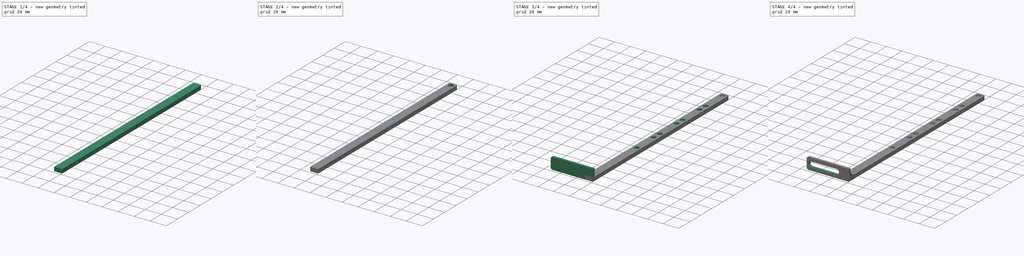
[diagram: build sequence overview — one tinted view per stage of 4, left to right]
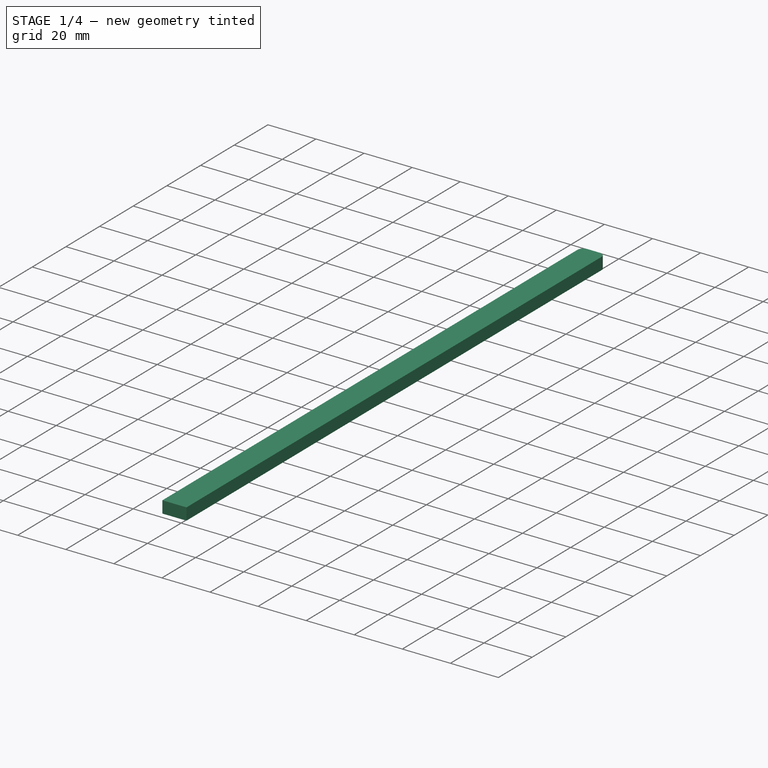
[diagram: stage 1 of 4 — iso view after this stage's code; geometry added in this stage tinted green]
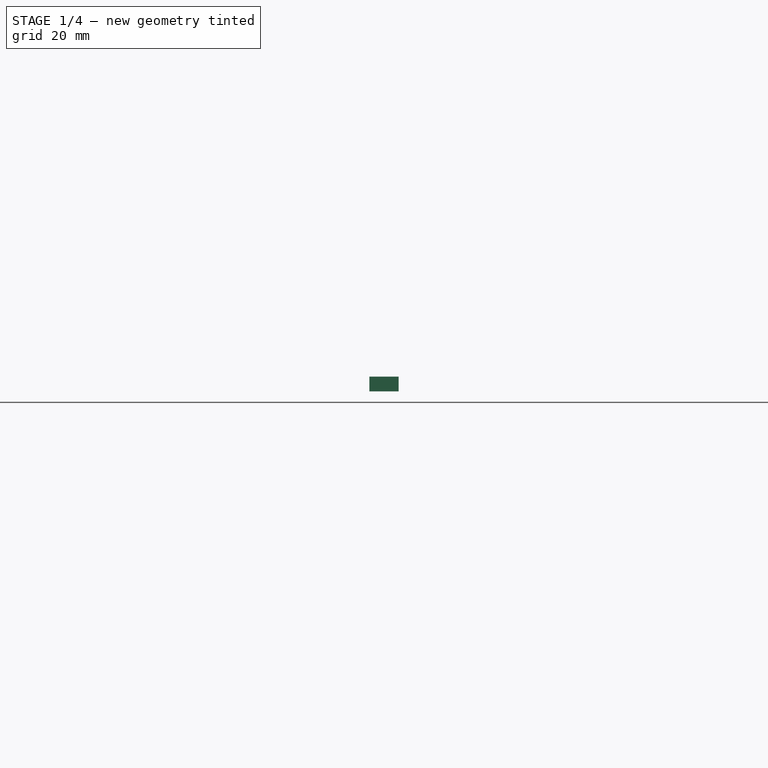
[diagram: stage 1 of 4 — front view after this stage's code; geometry added in this stage tinted green]
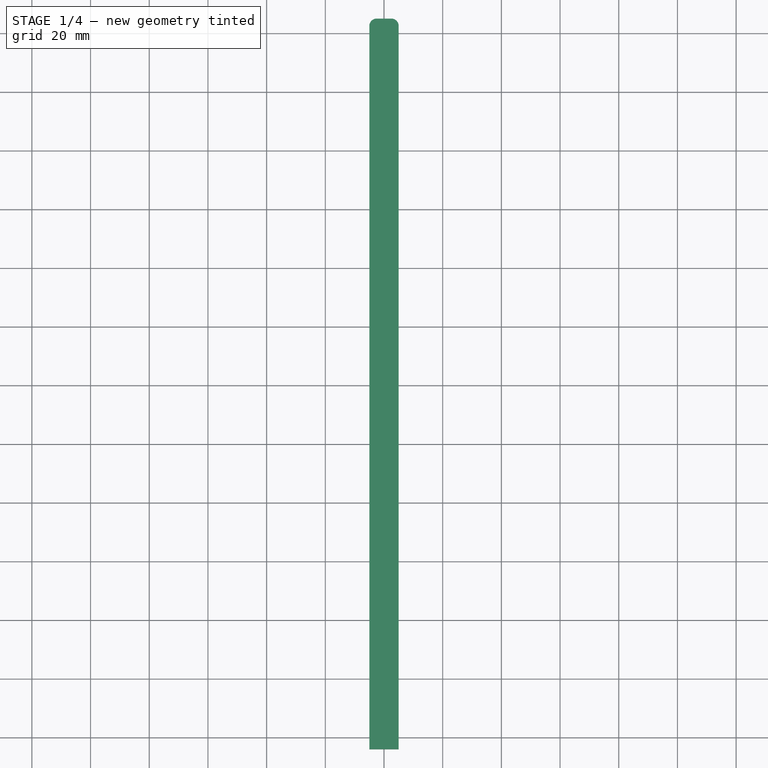
[diagram: stage 1 of 4 — top view after this stage's code; geometry added in this stage tinted green]
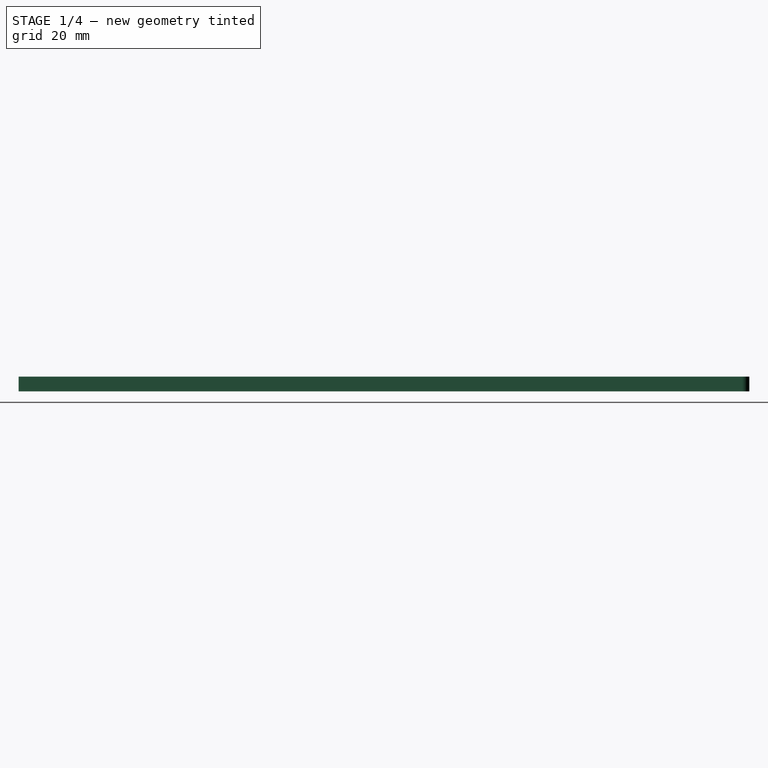
[diagram: stage 1 of 4 — right view after this stage's code; geometry added in this stage tinted green]
FCSTD DOCUMENT  (FreeCAD 0.19R)
Label: Rack
License: All rights reserved
LicenseURL: http://en.wikipedia.org/wiki/All_rights_reserved
objects: Sketcher::SketchObject×6, PartDesign::Pad×3, PartDesign::Mirrored×2, PartDesign::Pocket×2, PartDesign::LinearPattern×2, PartDesign::Hole×1, PartDesign::MultiTransform×1, PartDesign::Body×1
note: 24 computed .brp shape members not serialized (recipe doc carries the construction recipe); baked Part::Feature solids carry a one-line shape summary decoded from their .brp

FEATURE [Sketcher::SketchObject] Sketch  label="rod_sketch"
  FullyConstrained = true
  MapMode = 5
  Support = -> [XY_Plane]
  sketch-geometry (6):
    g0: LineSegment StartX=0 StartY=5 StartZ=0 EndX=-2.5 EndY=5 EndZ=0
    g1: LineSegment StartX=-5 StartY=2.5 StartZ=0 EndX=-5 EndY=-244 EndZ=0
    g2: LineSegment StartX=-5 StartY=-244 StartZ=0 EndX=0 EndY=-244 EndZ=0
    g3: LineSegment StartX=0 StartY=-244 StartZ=0 EndX=0 EndY=5 EndZ=0
    g4: ArcOfCircle CenterX=-2.5 CenterY=2.5 CenterZ=0 NormalX=0 NormalY=0 NormalZ=1 AngleXU=0 Radius=2.5 StartAngle=1.5708 EndAngle=3.14159
    g5: GeomPoint X=-5 Y=5 Z=0
  constraints (16):
    c: Coincident(g1,g2)
    c: Coincident(g2,g3)
    c: Coincident(g3,g0)
    c: Horizontal(g0)
    c: Horizontal(g2)
    c: Vertical(g1)
    c: Vertical(g3)
    c: PointOnObject(g0,g-2)
    c: DistanceX(g5,g0) = 5
    c: Distance(g0,g-1) = 5
    c: DistanceY(g3,g3) = 249
    c: PointOnObject(g5,g0)
    c: PointOnObject(g5,g1)
    c: Tangent(g0,g4) = -1.5708
    c: Tangent(g1,g4) = -1.5708
    c: Radius(g4) = 2.5
FEATURE [PartDesign::Pad] Pad  label="rod"
  Direction = (1,1,1)
  Length = 5
  Length2 = 100
  Profile = -> Sketch
  Type = 0
FEATURE [PartDesign::Mirrored] Mirrored  label="rod_mirror"
  BaseFeature = -> Pad
  MirrorPlane = -> Sketch [V_Axis]
  Originals = -> [Pad]
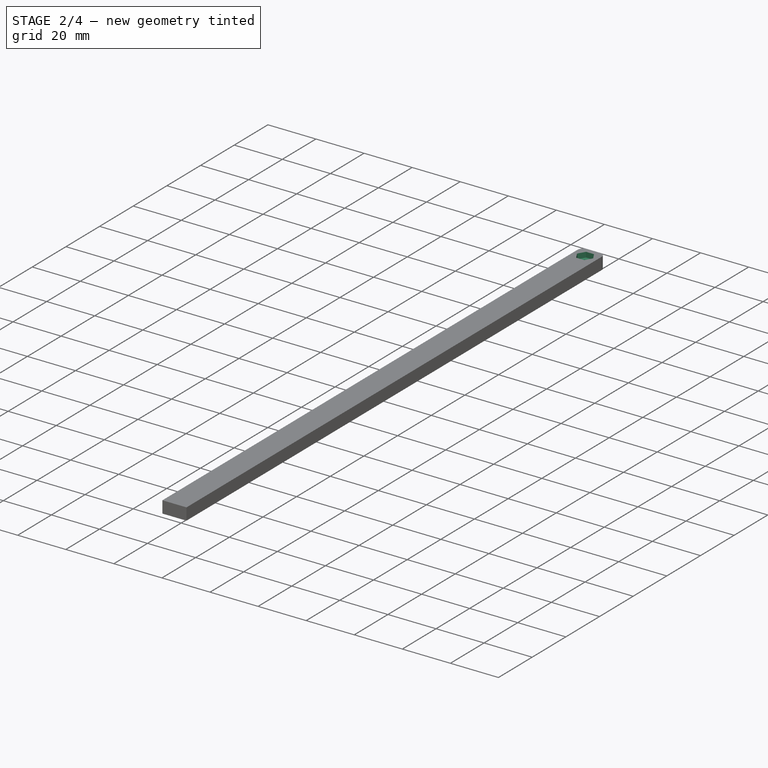
[diagram: stage 2 of 4 — iso view after this stage's code; geometry added in this stage tinted green]
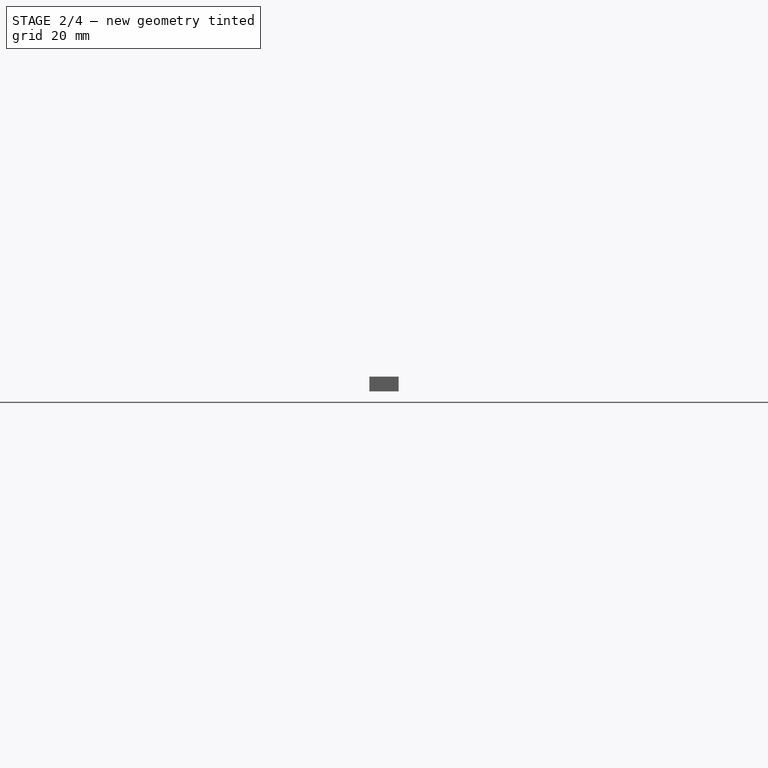
[diagram: stage 2 of 4 — front view after this stage's code; geometry added in this stage tinted green]
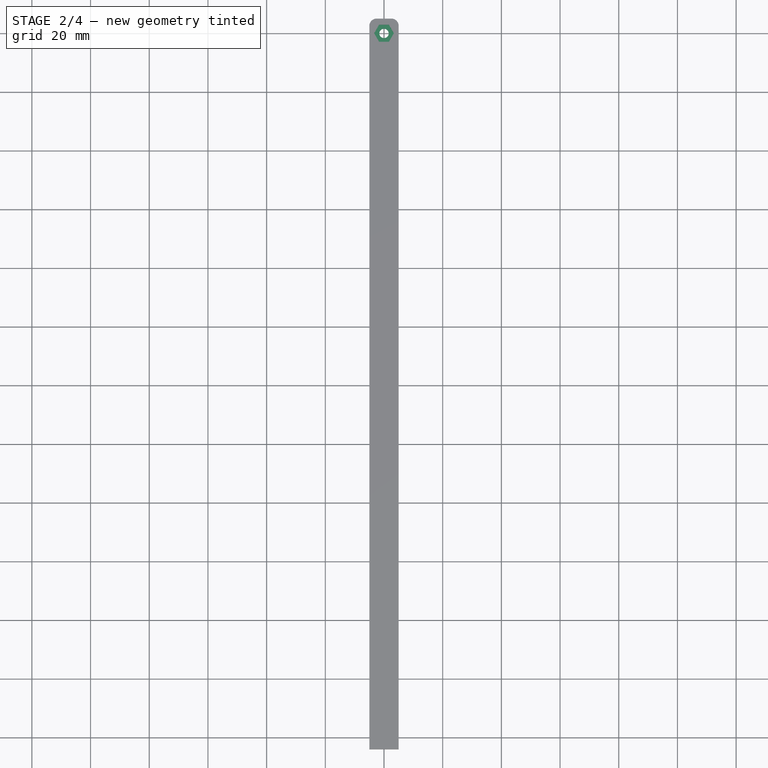
[diagram: stage 2 of 4 — top view after this stage's code; geometry added in this stage tinted green]
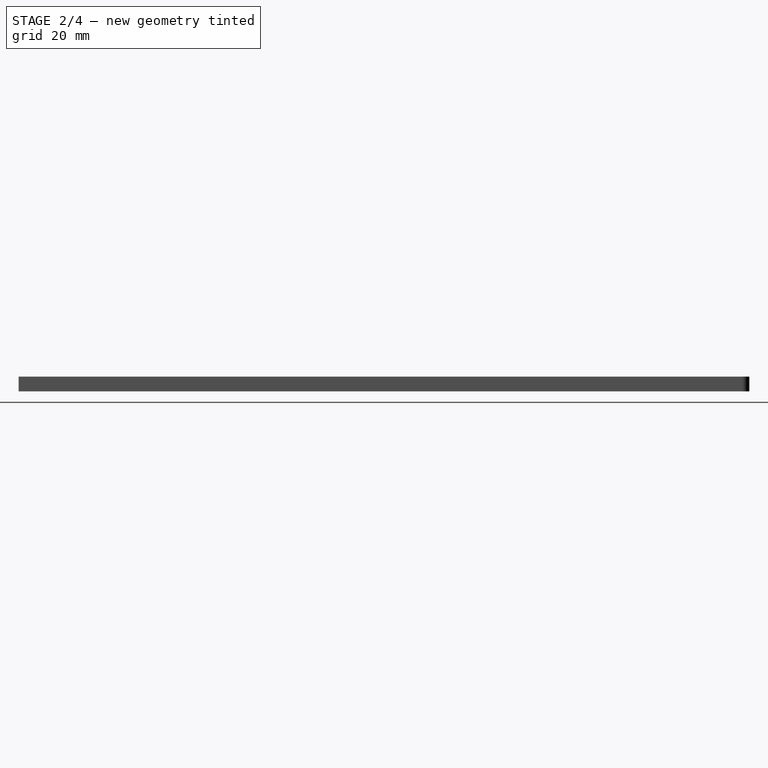
[diagram: stage 2 of 4 — right view after this stage's code; geometry added in this stage tinted green]
FEATURE [Sketcher::SketchObject] Sketch001  label="M3_hex_sketch"
  FullyConstrained = true
  MapMode = 5
  Placement = pos=(0,0,5) rot=(0,0,1;0rad)
  Support = -> [Mirrored]
  sketch-geometry (7):
    g0: LineSegment StartX=3.34863 StartY=0 StartZ=0 EndX=1.67432 EndY=2.9 EndZ=0
    g1: LineSegment StartX=1.67432 StartY=2.9 StartZ=0 EndX=-1.67432 EndY=2.9 EndZ=0
    g2: LineSegment StartX=-1.67432 StartY=2.9 StartZ=0 EndX=-3.34863 EndY=0 EndZ=0
    g3: LineSegment StartX=-3.34863 StartY=0 StartZ=0 EndX=-1.67432 EndY=-2.9 EndZ=0
    g4: LineSegment StartX=-1.67432 StartY=-2.9 StartZ=0 EndX=1.67432 EndY=-2.9 EndZ=0
    g5: LineSegment StartX=1.67432 StartY=-2.9 StartZ=0 EndX=3.34863 EndY=0 EndZ=0
    g6: Circle CenterX=0 CenterY=0 CenterZ=0 NormalX=0 NormalY=0 NormalZ=1 AngleXU=0 Radius=3.34863
  constraints (16):
    c: Coincident(g0,g1)
    c: Coincident(g1,g2)
    c: Coincident(g2,g3)
    c: Coincident(g3,g4)
    c: Coincident(g4,g5)
    c: Coincident(g5,g0)
    c: Equal(g0, g1-g5) x5
    c: PointOnObject(g0,g6)
    c: PointOnObject(g1,g6)
    c: PointOnObject(g2,g6)
    c: PointOnObject(g3,g6)
    c: PointOnObject(g4,g6)
    c: PointOnObject(g5,g6)
    c: Coincident(g6,g-1)
    c: PointOnObject(g5,g-1)
    c: DistanceY(g3,g1) = 5.8
FEATURE [PartDesign::Pocket] Pocket  label="M3_hex"
  BaseFeature = -> Mirrored
  Length = 2.15
  Length2 = 100
  Profile = -> Sketch001
  Type = 0
FEATURE [Sketcher::SketchObject] Sketch002  label="M3_hole_sektch"
  FullyConstrained = true
  MapMode = 5
  Placement = pos=(0,0,2.85) rot=(0,0,1;0rad)
  Support = -> [Pocket]
  sketch-geometry (1):
    g0: Circle CenterX=0 CenterY=0 CenterZ=0 NormalX=0 NormalY=0 NormalZ=1 AngleXU=0 Radius=1
  constraints (2):
    c: Coincident(g0,g-1)
    c: Radius(g0) = 1
FEATURE [PartDesign::Hole] Hole  label="M3_hole"
  BaseFeature = -> Pocket
  Depth = 25
  DepthType = 1
  Diameter = 3.2
  DrillForDepth = false
  DrillPoint = 1
  DrillPointAngle = 118
  HoleCutCountersinkAngle = 90
  HoleCutCustomValues = false
  HoleCutDepth = 0
  HoleCutDiameter = 6.1
  HoleCutType = 0
  ModelActualThread = false
  Profile = -> Sketch002
  Tapered = false
  TaperedAngle = 90
  ThreadAngle = 0
  ThreadClass = 0
  ThreadCutOffInner = 0
  ThreadCutOffOuter = 0
  ThreadDirection = 0
  ThreadFit = 1
  ThreadPitch = 0
  ThreadSize = 9
  ThreadType = 1
  Threaded = false
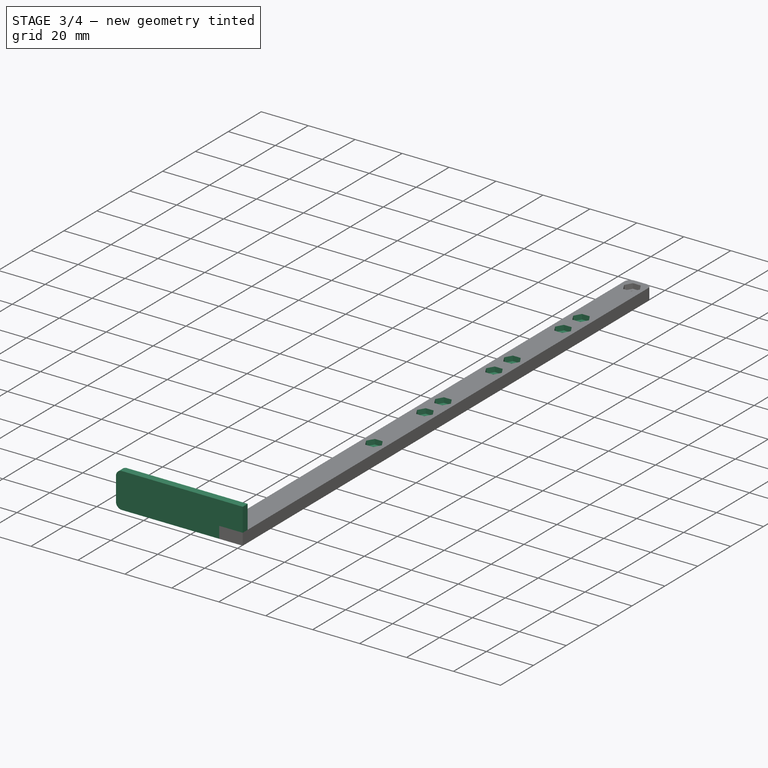
[diagram: stage 3 of 4 — iso view after this stage's code; geometry added in this stage tinted green]
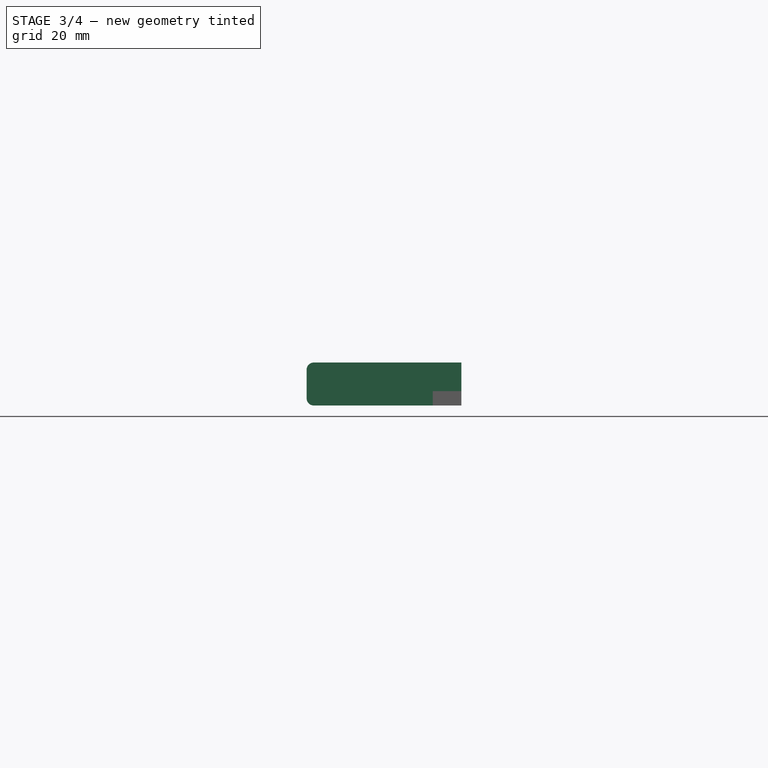
[diagram: stage 3 of 4 — front view after this stage's code; geometry added in this stage tinted green]
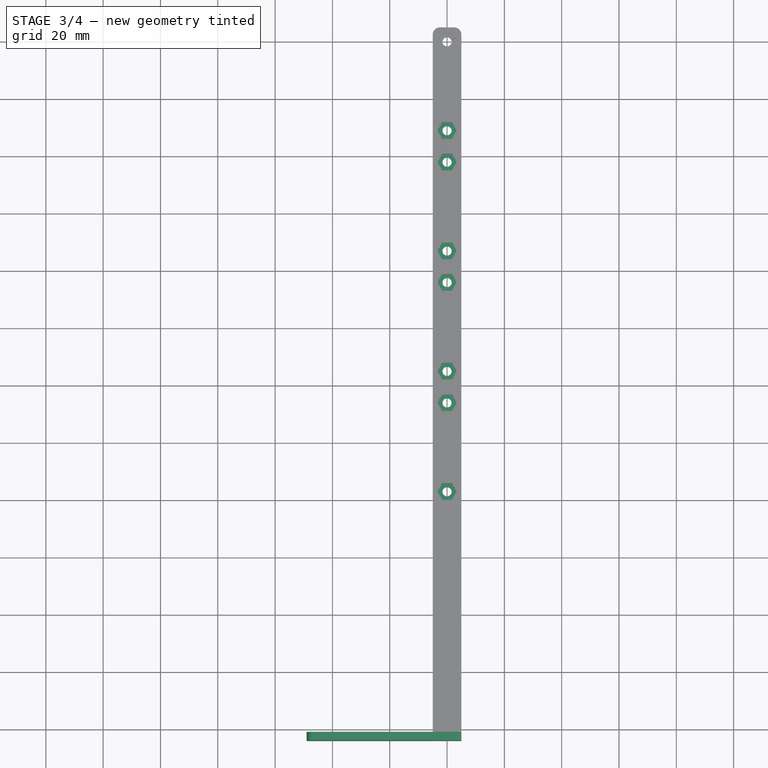
[diagram: stage 3 of 4 — top view after this stage's code; geometry added in this stage tinted green]
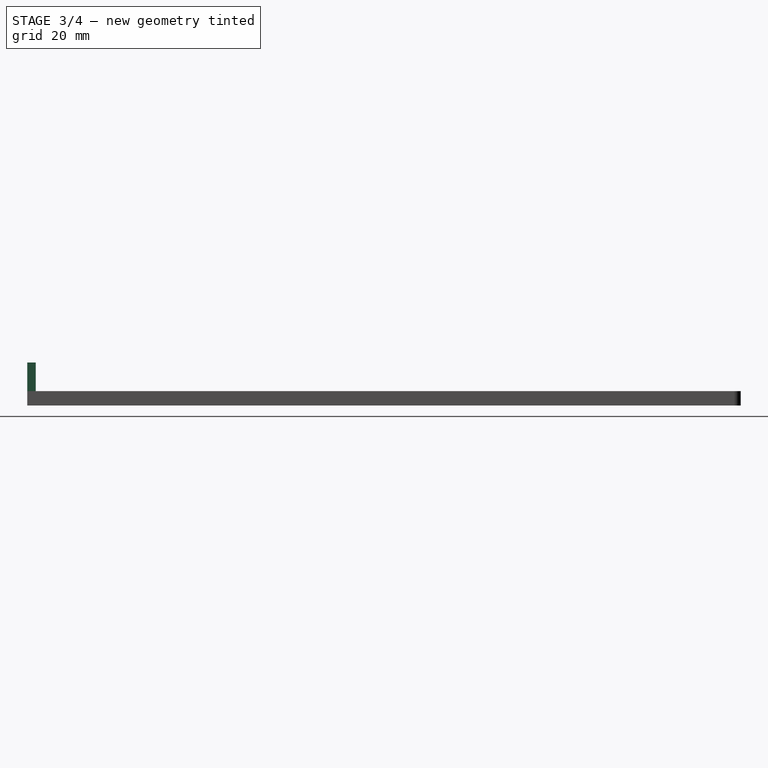
[diagram: stage 3 of 4 — right view after this stage's code; geometry added in this stage tinted green]
FEATURE [PartDesign::LinearPattern] LinearPattern
  Direction = -> Sketch001 [V_Axis]
  Length = 31
  Occurrences = 2
  Reversed = true
FEATURE [PartDesign::LinearPattern] LinearPattern001
  Direction = -> Sketch001 [V_Axis]
  Length = 126
  Occurrences = 4
  Reversed = true
FEATURE [PartDesign::MultiTransform] MultiTransform  label="M3_sys_array"
  BaseFeature = -> Hole
  Originals = -> [Pocket,Hole]
  Transformations = -> [LinearPattern,LinearPattern001]
FEATURE [Sketcher::SketchObject] Sketch004  label="side_base_half_sketch"
  ExternalGeometry = -> [MultiTransform]
  FullyConstrained = true
  MapMode = 5
  Placement = pos=(0,-244,0) rot=(1,0,0;1.5708rad)
  Support = -> [MultiTransform]
  sketch-geometry (6):
    g0: LineSegment StartX=5 StartY=0 StartZ=0 EndX=-46.5 EndY=0 EndZ=0
    g1: LineSegment StartX=-49 StartY=2.5 StartZ=0 EndX=-49 EndY=7.5 EndZ=0
    g2: LineSegment StartX=-49 StartY=7.5 StartZ=0 EndX=5 EndY=7.5 EndZ=0
    g3: LineSegment StartX=5 StartY=7.5 StartZ=0 EndX=5 EndY=0 EndZ=0
    g4: ArcOfCircle CenterX=-46.5 CenterY=2.5 CenterZ=0 NormalX=0 NormalY=0 NormalZ=1 AngleXU=0 Radius=2.5 StartAngle=3.14159 EndAngle=4.71239
    g5: GeomPoint X=-49 Y=0 Z=0
  constraints (15):
    c: Coincident(g1,g2)
    c: Coincident(g2,g3)
    c: Coincident(g3,g0)
    c: Horizontal(g0)
    c: Horizontal(g2)
    c: Vertical(g1)
    c: Vertical(g3)
    c: Coincident(g0,g-3)
    c: DistanceY(g3,g3) = 7.5
    c: DistanceX(g2,g2) = 54
    c: PointOnObject(g5,g1)
    c: PointOnObject(g5,g0)
    c: Tangent(g1,g4) = 1.5708
    c: Tangent(g0,g4) = 1.5708
    c: Radius(g4) = 2.5
FEATURE [PartDesign::Pad] Pad001  label="side_base_half"
  BaseFeature = -> MultiTransform
  Direction = (1,1,1)
  Length = 3
  Length2 = 100
  Profile = -> Sketch004
  Reversed = true
  Type = 0
FEATURE [PartDesign::Mirrored] Mirrored001  label="side_base"
  BaseFeature = -> Pad001
  MirrorPlane = -> Pad001 [Face82]
  Originals = -> [Pad001]
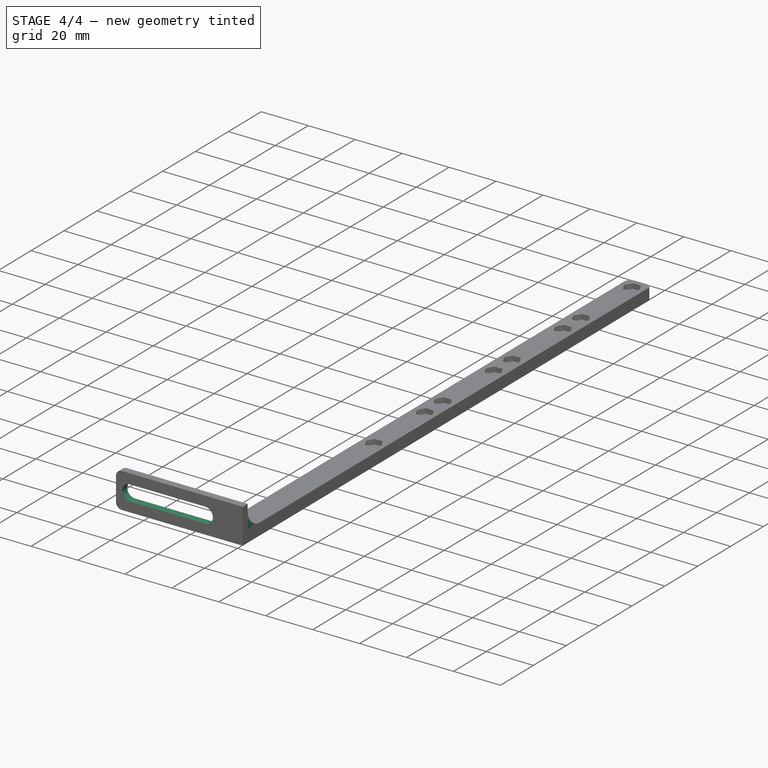
[diagram: stage 4 of 4 — iso view after this stage's code; geometry added in this stage tinted green]
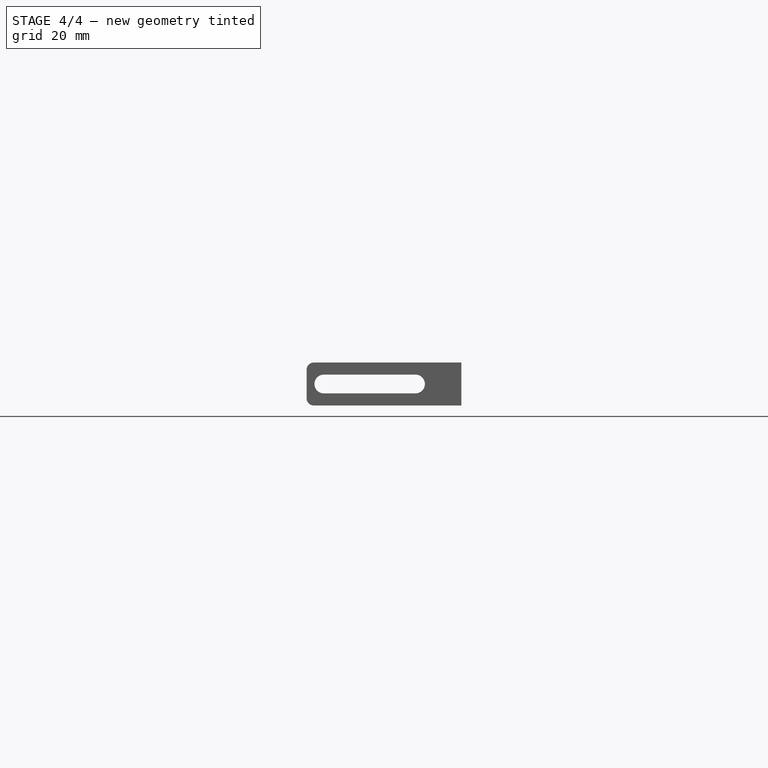
[diagram: stage 4 of 4 — front view after this stage's code; geometry added in this stage tinted green]
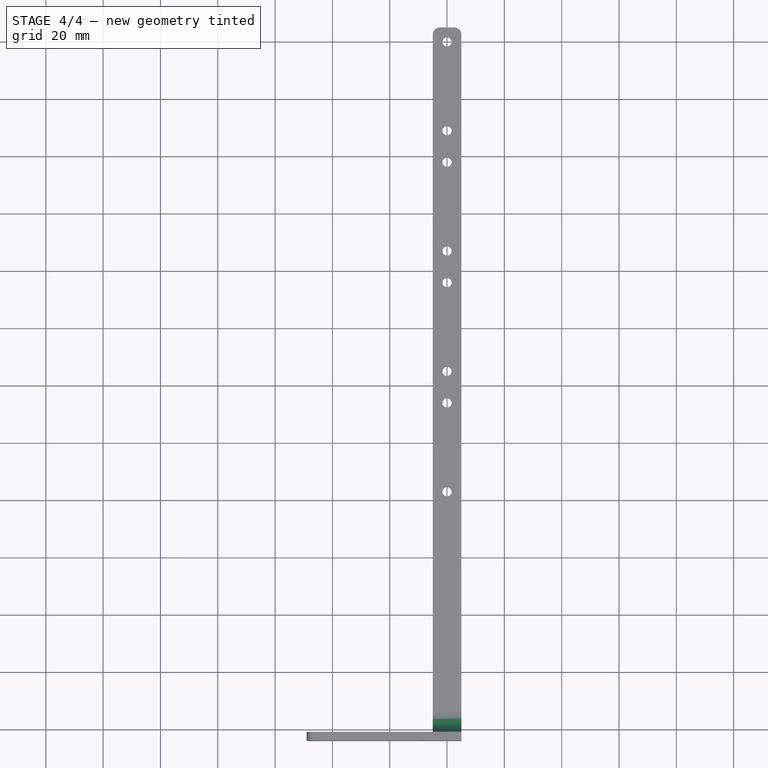
[diagram: stage 4 of 4 — top view after this stage's code; geometry added in this stage tinted green]
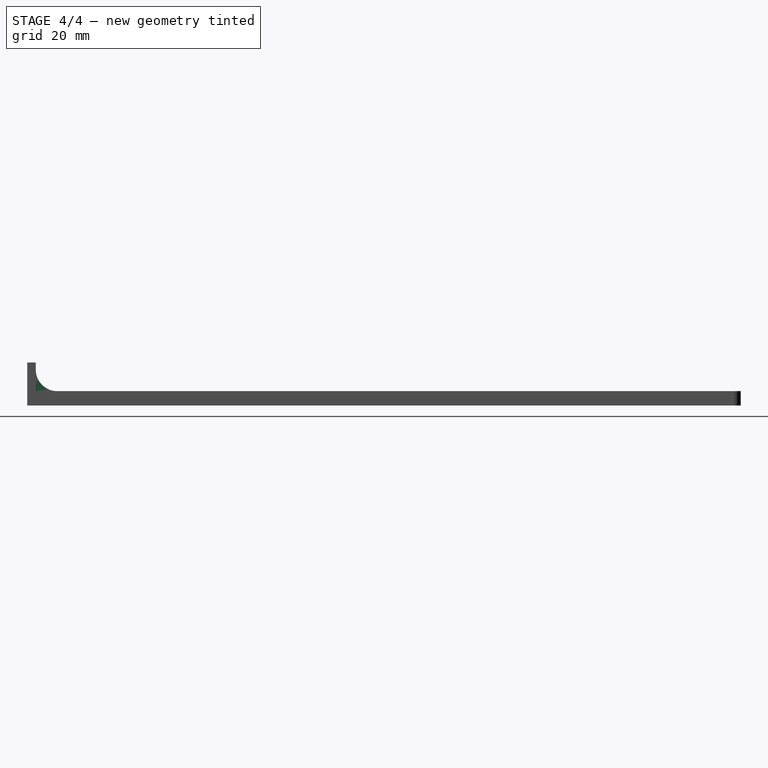
[diagram: stage 4 of 4 — right view after this stage's code; geometry added in this stage tinted green]
FEATURE [Sketcher::SketchObject] Sketch005  label="side_slot_sketch"
  ExternalGeometry = -> [Mirrored001]
  FullyConstrained = true
  MapMode = 5
  Placement = pos=(0,-241,0) rot=(0,0.707107,0.707107;3.14159rad)
  Support = -> [Mirrored001]
  sketch-geometry (4):
    g0: ArcOfCircle CenterX=43 CenterY=7.5 CenterZ=0 NormalX=0 NormalY=0 NormalZ=1 AngleXU=0 Radius=3.265 StartAngle=4.71239 EndAngle=7.85398
    g1: ArcOfCircle CenterX=11 CenterY=7.5 CenterZ=0 NormalX=0 NormalY=0 NormalZ=1 AngleXU=0 Radius=3.265 StartAngle=1.5708 EndAngle=4.71239
    g2: LineSegment StartX=43 StartY=10.765 StartZ=0 EndX=11 EndY=10.765 EndZ=0
    g3: LineSegment StartX=43 StartY=4.235 StartZ=0 EndX=11 EndY=4.235 EndZ=0
  constraints (10):
    c: Tangent(g0,g3) = 1.5708
    c: Tangent(g0,g2) = -1.5708
    c: Tangent(g2,g1) = -1.5708
    c: Tangent(g3,g1) = 1.5708
    c: Horizontal(g2)
    c: Equal(g0,g1)
    c: PointOnObject(g0,g-3)
    c: DistanceX(g0,g-3) = 6
    c: DistanceX(g1,g0) = 32
    c: Radius(g0) = 3.265
FEATURE [PartDesign::Pocket] Pocket001  label="side_slot"
  BaseFeature = -> Mirrored001
  Length = 5
  Length2 = 100
  Profile = -> Sketch005
  Type = 1
FEATURE [Sketcher::SketchObject] Sketch007  label="side_stiffener_sketch"
  ExternalGeometry = -> [Pocket001]
  FullyConstrained = true
  MapMode = 5
  Placement = pos=(5,0,0) rot=(0.57735,0.57735,0.57735;2.0944rad)
  Support = -> [Pocket001]
  sketch-geometry (3):
    g0: LineSegment StartX=-241 StartY=5 StartZ=0 EndX=-233.5 EndY=5 EndZ=0
    g1: LineSegment StartX=-241 StartY=5 StartZ=0 EndX=-241 EndY=12.5 EndZ=0
    g2: ArcOfCircle CenterX=-233.5 CenterY=12.5 CenterZ=0 NormalX=0 NormalY=0 NormalZ=1 AngleXU=0 Radius=7.5 StartAngle=3.14159 EndAngle=4.71239
  constraints (9):
    c: Coincident(g0,g-3)
    c: Horizontal(g0)
    c: Coincident(g1,g0)
    c: Vertical(g1)
    c: Coincident(g2,g1)
    c: Coincident(g2,g0)
    c: Radius(g2) = 7.5
    c: Tangent(g2,g1)
    c: Tangent(g2,g0)
FEATURE [PartDesign::Pad] Pad002  label="side_stiffener"
  BaseFeature = -> Pocket001
  Direction = (1,1,1)
  Length = 10
  Length2 = 100
  Profile = -> Sketch007
  Reversed = true
  Type = 0
FEATURE [PartDesign::Body] Body  label="Rack"
  Group = -> [Sketch,Pad,Mirrored,Sketch001,Pocket,Sketch002,Hole,MultiTransform,LinearPattern,LinearPattern001,Sketch004,Pad001,Mirrored001,Sketch005,Pocket001,Sketch007,Pad002]
  Origin = -> Origin
  Tip = -> Pad002
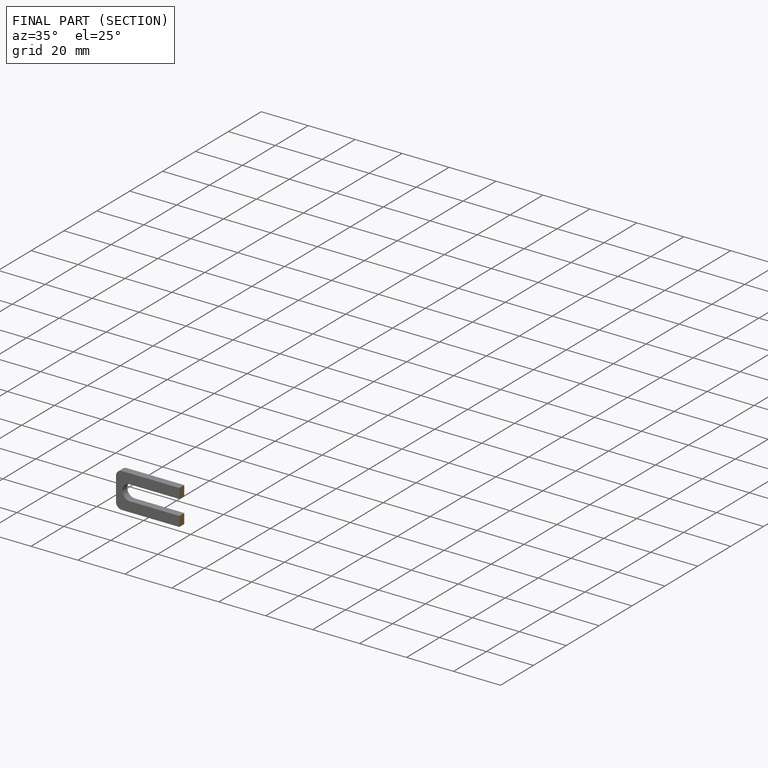
[diagram: finished part — half-section view (interior)]
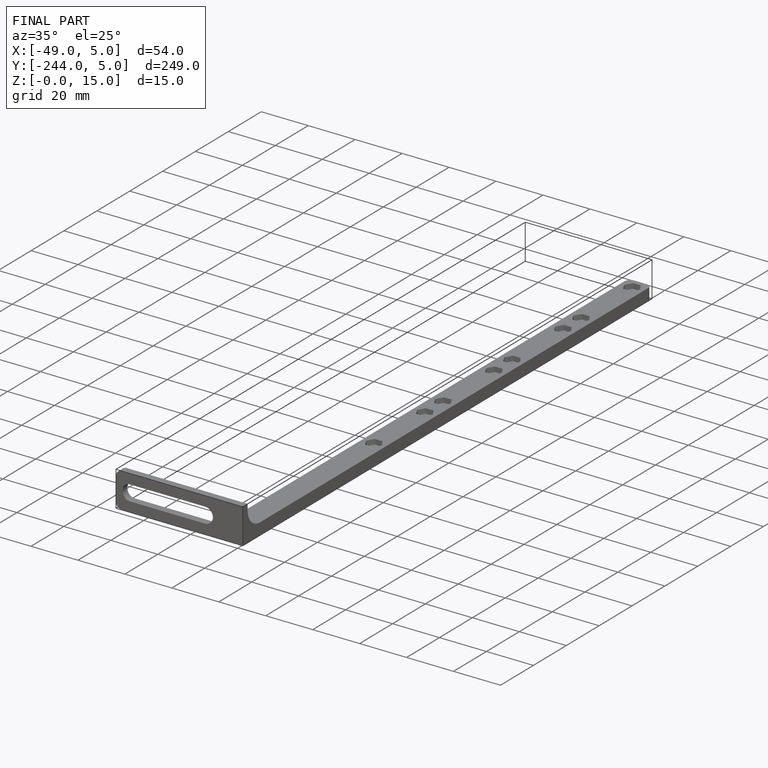
[diagram: finished part — iso view with bounding-box wireframe]
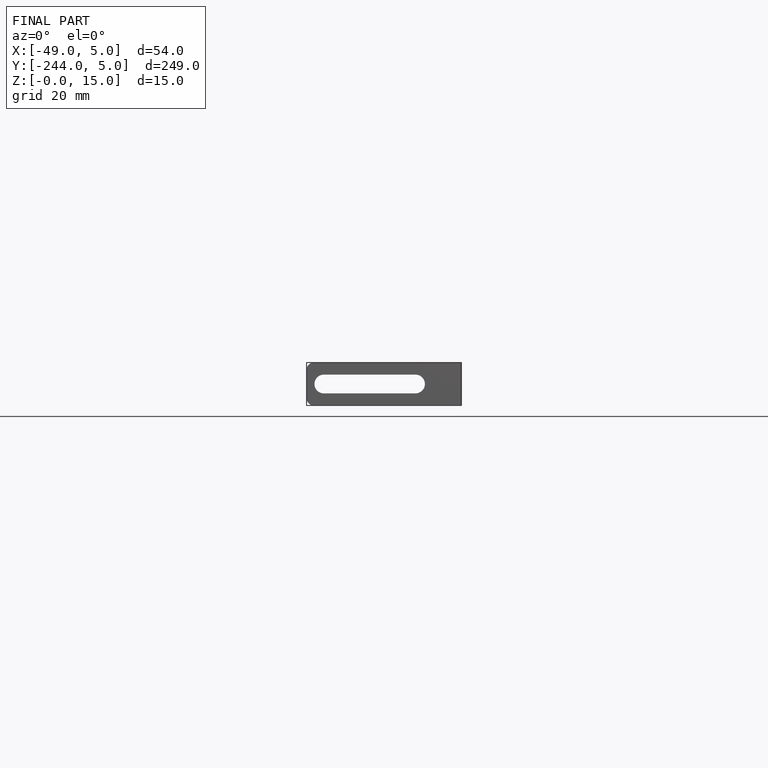
[diagram: finished part — front view with bounding-box wireframe]
